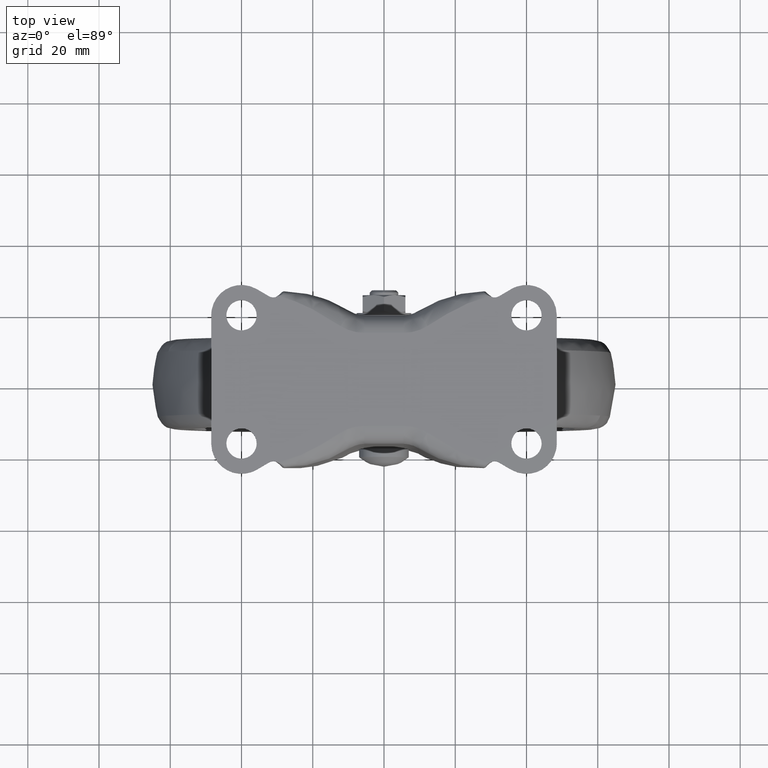
[diagram: clean part render]
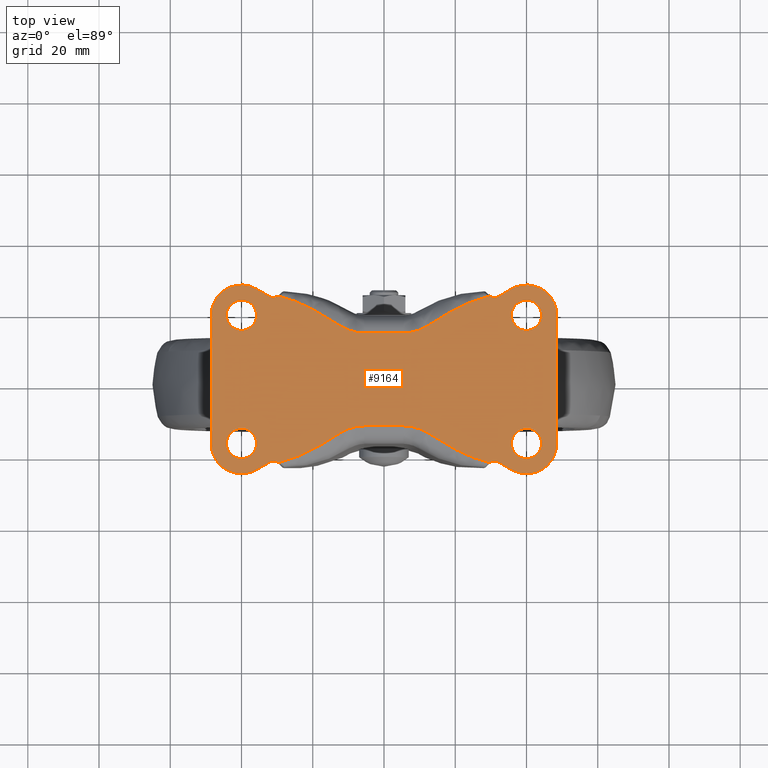
[diagram: same view with one face highlighted and labeled with its STEP entity id]
A machine part, top view. The second image highlights one B-rep face of the part: STEP entity #9164.
In plain terms, the highlighted face is a freeform B-spline surface patch.
Its self-contained STEP definition (entity closure, byte-faithful):
#4738=CARTESIAN_POINT('',(-40.501645497615932,13.779709512993010,-7.098571E-018));
#4739=VERTEX_POINT('',#4738);
#4745=CARTESIAN_POINT('',(-35.750000000000007,18.0,0.0));
#4746=VERTEX_POINT('',#4745);
#4747=CARTESIAN_POINT('',(-40.501645497615925,13.779709512993009,-7.098571E-018));
#4748=CARTESIAN_POINT('',(-40.251702508848759,13.749999999999998,0.0));
#4749=CARTESIAN_POINT('',(-40.0,13.750000000000000,0.0));
#4750=CARTESIAN_POINT('',(-35.750000000000007,13.750000000000000,0.0));
#4751=CARTESIAN_POINT('',(-35.750000000000007,18.0,0.0));
#4759=(BOUNDED_CURVE()B_SPLINE_CURVE(2,(#4747,#4748,#4749,#4750,#4751),.UNSPECIFIED.,.F.,.U.)B_SPLINE_CURVE_WITH_KNOTS((3,2,3),(0.229562473489638,0.250000000000000,0.500000000000000),.UNSPECIFIED.)CURVE()GEOMETRIC_REPRESENTATION_ITEM()RATIONAL_B_SPLINE_CURVE((0.956026754136913,0.976055948303180,1.0,0.707106781186548,1.0))REPRESENTATION_ITEM(''));
#4760=EDGE_CURVE('',#4739,#4746,#4759,.T.);
#4762=CARTESIAN_POINT('',(-39.740543706561297,22.242072893267519,-1.040834E-017));
#4763=VERTEX_POINT('',#4762);
#4764=CARTESIAN_POINT('',(-35.750000000000007,18.0,0.0));
#4765=CARTESIAN_POINT('',(-35.750000000000007,21.998000783564457,0.0));
#4766=CARTESIAN_POINT('',(-39.740543706561297,22.242072893267515,-1.040834E-017));
#4774=(BOUNDED_CURVE()B_SPLINE_CURVE(2,(#4764,#4765,#4766),.UNSPECIFIED.,.F.,.U.)B_SPLINE_CURVE_WITH_KNOTS((3,3),(0.500000000000000,0.739332962208163),.UNSPECIFIED.)CURVE()GEOMETRIC_REPRESENTATION_ITEM()RATIONAL_B_SPLINE_CURVE((1.0,0.719603993322771,0.976072041600751))REPRESENTATION_ITEM(''));
#4775=EDGE_CURVE('',#4746,#4763,#4774,.T.);
#4849=CARTESIAN_POINT('',(-44.250000000000000,18.0,0.0));
#4850=VERTEX_POINT('',#4849);
#4851=CARTESIAN_POINT('',(-39.740543706561290,22.242072893267515,-1.040834E-017));
#4852=CARTESIAN_POINT('',(-39.870150755564268,22.250000000000000,0.0));
#4853=CARTESIAN_POINT('',(-40.0,22.250000000000000,0.0));
#4854=CARTESIAN_POINT('',(-44.250000000000000,22.249999999999996,0.0));
#4855=CARTESIAN_POINT('',(-44.250000000000000,18.0,0.0));
#4863=(BOUNDED_CURVE()B_SPLINE_CURVE(2,(#4851,#4852,#4853,#4854,#4855),.UNSPECIFIED.,.F.,.U.)B_SPLINE_CURVE_WITH_KNOTS((3,2,3),(0.739332962208162,0.750000000000000,1.0),.UNSPECIFIED.)CURVE()GEOMETRIC_REPRESENTATION_ITEM()RATIONAL_B_SPLINE_CURVE((0.976072041600749,0.987502787863776,1.0,0.707106781186548,1.0))REPRESENTATION_ITEM(''));
#4864=EDGE_CURVE('',#4763,#4850,#4863,.T.);
#4866=CARTESIAN_POINT('',(-44.250000000000000,18.0,0.0));
#4867=CARTESIAN_POINT('',(-44.249999999999993,14.225258265291631,0.0));
#4868=CARTESIAN_POINT('',(-40.501645497615925,13.779709512993009,-7.098571E-018));
#4876=(BOUNDED_CURVE()B_SPLINE_CURVE(2,(#4866,#4867,#4868),.UNSPECIFIED.,.F.,.U.)B_SPLINE_CURVE_WITH_KNOTS((3,3),(0.0,0.229562473489638),.UNSPECIFIED.)CURVE()GEOMETRIC_REPRESENTATION_ITEM()RATIONAL_B_SPLINE_CURVE((1.0,0.731050832883368,0.956026754136913))REPRESENTATION_ITEM(''));
#4877=EDGE_CURVE('',#4850,#4739,#4876,.T.);
#4924=CARTESIAN_POINT('',(-40.501645497615932,-22.220290487006981,-7.098571E-018));
#4925=VERTEX_POINT('',#4924);
#4931=CARTESIAN_POINT('',(-35.750000000000007,-18.0,0.0));
#4932=VERTEX_POINT('',#4931);
#4933=CARTESIAN_POINT('',(-40.501645497615947,-22.220290487006988,-7.098571E-018));
#4934=CARTESIAN_POINT('',(-40.251702508848766,-22.250000000000000,0.0));
#4935=CARTESIAN_POINT('',(-40.0,-22.250000000000000,0.0));
#4936=CARTESIAN_POINT('',(-35.750000000000007,-22.249999999999996,0.0));
#4937=CARTESIAN_POINT('',(-35.750000000000007,-18.0,0.0));
#4945=(BOUNDED_CURVE()B_SPLINE_CURVE(2,(#4933,#4934,#4935,#4936,#4937),.UNSPECIFIED.,.F.,.U.)B_SPLINE_CURVE_WITH_KNOTS((3,2,3),(0.229562473489638,0.250000000000000,0.500000000000000),.UNSPECIFIED.)CURVE()GEOMETRIC_REPRESENTATION_ITEM()RATIONAL_B_SPLINE_CURVE((0.956026754136913,0.976055948303179,1.0,0.707106781186548,1.0))REPRESENTATION_ITEM(''));
#4946=EDGE_CURVE('',#4925,#4932,#4945,.T.);
#4948=CARTESIAN_POINT('',(-39.740543706561297,-13.757927106732479,-1.040834E-017));
#4949=VERTEX_POINT('',#4948);
#4950=CARTESIAN_POINT('',(-35.750000000000007,-18.0,0.0));
#4951=CARTESIAN_POINT('',(-35.750000000000007,-14.001999216435546,0.0));
#4952=CARTESIAN_POINT('',(-39.740543706561297,-13.757927106732479,-1.040834E-017));
#4960=(BOUNDED_CURVE()B_SPLINE_CURVE(2,(#4950,#4951,#4952),.UNSPECIFIED.,.F.,.U.)B_SPLINE_CURVE_WITH_KNOTS((3,3),(0.500000000000000,0.739332962208163),.UNSPECIFIED.)CURVE()GEOMETRIC_REPRESENTATION_ITEM()RATIONAL_B_SPLINE_CURVE((1.0,0.719603993322771,0.976072041600751))REPRESENTATION_ITEM(''));
#4961=EDGE_CURVE('',#4932,#4949,#4960,.T.);
#5035=CARTESIAN_POINT('',(-44.250000000000000,-18.0,0.0));
#5036=VERTEX_POINT('',#5035);
#5037=CARTESIAN_POINT('',(-39.740543706561290,-13.757927106732479,-1.040834E-017));
#5038=CARTESIAN_POINT('',(-39.870150755564268,-13.749999999999993,0.0));
#5039=CARTESIAN_POINT('',(-40.0,-13.750000000000000,0.0));
#5040=CARTESIAN_POINT('',(-44.250000000000000,-13.750000000000000,0.0));
#5041=CARTESIAN_POINT('',(-44.250000000000000,-18.0,0.0));
#5049=(BOUNDED_CURVE()B_SPLINE_CURVE(2,(#5037,#5038,#5039,#5040,#5041),.UNSPECIFIED.,.F.,.U.)B_SPLINE_CURVE_WITH_KNOTS((3,2,3),(0.739332962208162,0.750000000000000,1.0),.UNSPECIFIED.)CURVE()GEOMETRIC_REPRESENTATION_ITEM()RATIONAL_B_SPLINE_CURVE((0.976072041600749,0.987502787863776,1.0,0.707106781186548,1.0))REPRESENTATION_ITEM(''));
#5050=EDGE_CURVE('',#4949,#5036,#5049,.T.);
#5052=CARTESIAN_POINT('',(-44.250000000000000,-18.0,0.0));
#5053=CARTESIAN_POINT('',(-44.250000000000000,-21.774741734708364,0.0));
#5054=CARTESIAN_POINT('',(-40.501645497615932,-22.220290487006984,-7.098571E-018));
#5062=(BOUNDED_CURVE()B_SPLINE_CURVE(2,(#5052,#5053,#5054),.UNSPECIFIED.,.F.,.U.)B_SPLINE_CURVE_WITH_KNOTS((3,3),(0.0,0.229562473489638),.UNSPECIFIED.)CURVE()GEOMETRIC_REPRESENTATION_ITEM()RATIONAL_B_SPLINE_CURVE((1.0,0.731050832883368,0.956026754136913))REPRESENTATION_ITEM(''));
#5063=EDGE_CURVE('',#5036,#4925,#5062,.T.);
#5110=CARTESIAN_POINT('',(39.498354502384082,13.779709512993010,-7.098571E-018));
#5111=VERTEX_POINT('',#5110);
#5117=CARTESIAN_POINT('',(44.250000000000000,18.0,0.0));
#5118=VERTEX_POINT('',#5117);
#5119=CARTESIAN_POINT('',(39.498354502384082,13.779709512993014,-7.098571E-018));
#5120=CARTESIAN_POINT('',(39.748297491151249,13.749999999999996,0.0));
#5121=CARTESIAN_POINT('',(40.0,13.750000000000000,0.0));
#5122=CARTESIAN_POINT('',(44.250000000000000,13.750000000000000,0.0));
#5123=CARTESIAN_POINT('',(44.250000000000000,18.0,0.0));
#5131=(BOUNDED_CURVE()B_SPLINE_CURVE(2,(#5119,#5120,#5121,#5122,#5123),.UNSPECIFIED.,.F.,.U.)B_SPLINE_CURVE_WITH_KNOTS((3,2,3),(0.229562473489639,0.250000000000000,0.500000000000000),.UNSPECIFIED.)CURVE()GEOMETRIC_REPRESENTATION_ITEM()RATIONAL_B_SPLINE_CURVE((0.956026754136913,0.976055948303180,1.0,0.707106781186548,1.0))REPRESENTATION_ITEM(''));
#5132=EDGE_CURVE('',#5111,#5118,#5131,.T.);
#5134=CARTESIAN_POINT('',(40.259456293438710,22.242072893267519,-1.040834E-017));
#5135=VERTEX_POINT('',#5134);
#5136=CARTESIAN_POINT('',(44.250000000000000,18.0,0.0));
#5137=CARTESIAN_POINT('',(44.250000000000000,21.998000783564457,0.0));
#5138=CARTESIAN_POINT('',(40.259456293438710,22.242072893267515,-1.040834E-017));
#5146=(BOUNDED_CURVE()B_SPLINE_CURVE(2,(#5136,#5137,#5138),.UNSPECIFIED.,.F.,.U.)B_SPLINE_CURVE_WITH_KNOTS((3,3),(0.500000000000000,0.739332962208163),.UNSPECIFIED.)CURVE()GEOMETRIC_REPRESENTATION_ITEM()RATIONAL_B_SPLINE_CURVE((1.0,0.719603993322771,0.976072041600751))REPRESENTATION_ITEM(''));
#5147=EDGE_CURVE('',#5118,#5135,#5146,.T.);
#5221=CARTESIAN_POINT('',(35.750000000000007,18.0,0.0));
#5222=VERTEX_POINT('',#5221);
#5223=CARTESIAN_POINT('',(40.259456293438710,22.242072893267522,-1.040834E-017));
#5224=CARTESIAN_POINT('',(40.129849244435732,22.250000000000007,0.0));
#5225=CARTESIAN_POINT('',(40.0,22.250000000000000,0.0));
#5226=CARTESIAN_POINT('',(35.750000000000007,22.249999999999996,0.0));
#5227=CARTESIAN_POINT('',(35.750000000000007,18.0,0.0));
#5235=(BOUNDED_CURVE()B_SPLINE_CURVE(2,(#5223,#5224,#5225,#5226,#5227),.UNSPECIFIED.,.F.,.U.)B_SPLINE_CURVE_WITH_KNOTS((3,2,3),(0.739332962208162,0.750000000000000,1.0),.UNSPECIFIED.)CURVE()GEOMETRIC_REPRESENTATION_ITEM()RATIONAL_B_SPLINE_CURVE((0.976072041600749,0.987502787863775,1.0,0.707106781186548,1.0))REPRESENTATION_ITEM(''));
#5236=EDGE_CURVE('',#5135,#5222,#5235,.T.);
#5238=CARTESIAN_POINT('',(35.750000000000007,18.0,0.0));
#5239=CARTESIAN_POINT('',(35.750000000000000,14.225258265291618,0.0));
#5240=CARTESIAN_POINT('',(39.498354502384082,13.779709512993014,-7.098571E-018));
#5248=(BOUNDED_CURVE()B_SPLINE_CURVE(2,(#5238,#5239,#5240),.UNSPECIFIED.,.F.,.U.)B_SPLINE_CURVE_WITH_KNOTS((3,3),(0.0,0.229562473489639),.UNSPECIFIED.)CURVE()GEOMETRIC_REPRESENTATION_ITEM()RATIONAL_B_SPLINE_CURVE((1.0,0.731050832883368,0.956026754136913))REPRESENTATION_ITEM(''));
#5249=EDGE_CURVE('',#5222,#5111,#5248,.T.);
#5296=CARTESIAN_POINT('',(39.498354502384082,-22.220290487006981,-7.098571E-018));
#5297=VERTEX_POINT('',#5296);
#5303=CARTESIAN_POINT('',(44.250000000000000,-18.0,0.0));
#5304=VERTEX_POINT('',#5303);
#5305=CARTESIAN_POINT('',(39.498354502384082,-22.220290487006981,-7.098571E-018));
#5306=CARTESIAN_POINT('',(39.748297491151249,-22.250000000000000,0.0));
#5307=CARTESIAN_POINT('',(40.0,-22.250000000000000,0.0));
#5308=CARTESIAN_POINT('',(44.250000000000000,-22.249999999999996,0.0));
#5309=CARTESIAN_POINT('',(44.250000000000000,-18.0,0.0));
#5317=(BOUNDED_CURVE()B_SPLINE_CURVE(2,(#5305,#5306,#5307,#5308,#5309),.UNSPECIFIED.,.F.,.U.)B_SPLINE_CURVE_WITH_KNOTS((3,2,3),(0.229562473489638,0.250000000000000,0.500000000000000),.UNSPECIFIED.)CURVE()GEOMETRIC_REPRESENTATION_ITEM()RATIONAL_B_SPLINE_CURVE((0.956026754136913,0.976055948303180,1.0,0.707106781186548,1.0))REPRESENTATION_ITEM(''));
#5318=EDGE_CURVE('',#5297,#5304,#5317,.T.);
#5320=CARTESIAN_POINT('',(40.259456293438710,-13.757927106732479,-1.040834E-017));
#5321=VERTEX_POINT('',#5320);
#5322=CARTESIAN_POINT('',(44.250000000000000,-18.0,0.0));
#5323=CARTESIAN_POINT('',(44.250000000000000,-14.001999216435546,0.0));
#5324=CARTESIAN_POINT('',(40.259456293438710,-13.757927106732479,-1.040834E-017));
#5332=(BOUNDED_CURVE()B_SPLINE_CURVE(2,(#5322,#5323,#5324),.UNSPECIFIED.,.F.,.U.)B_SPLINE_CURVE_WITH_KNOTS((3,3),(0.500000000000000,0.739332962208163),.UNSPECIFIED.)CURVE()GEOMETRIC_REPRESENTATION_ITEM()RATIONAL_B_SPLINE_CURVE((1.0,0.719603993322771,0.976072041600751))REPRESENTATION_ITEM(''));
#5333=EDGE_CURVE('',#5304,#5321,#5332,.T.);
#5407=CARTESIAN_POINT('',(35.750000000000007,-18.0,0.0));
#5408=VERTEX_POINT('',#5407);
#5409=CARTESIAN_POINT('',(40.259456293438710,-13.757927106732478,-1.040834E-017));
#5410=CARTESIAN_POINT('',(40.129849244435732,-13.749999999999996,0.0));
#5411=CARTESIAN_POINT('',(40.0,-13.750000000000000,0.0));
#5412=CARTESIAN_POINT('',(35.750000000000007,-13.750000000000000,0.0));
#5413=CARTESIAN_POINT('',(35.750000000000007,-18.0,0.0));
#5421=(BOUNDED_CURVE()B_SPLINE_CURVE(2,(#5409,#5410,#5411,#5412,#5413),.UNSPECIFIED.,.F.,.U.)B_SPLINE_CURVE_WITH_KNOTS((3,2,3),(0.739332962208162,0.750000000000000,1.0),.UNSPECIFIED.)CURVE()GEOMETRIC_REPRESENTATION_ITEM()RATIONAL_B_SPLINE_CURVE((0.976072041600749,0.987502787863775,1.0,0.707106781186548,1.0))REPRESENTATION_ITEM(''));
#5422=EDGE_CURVE('',#5321,#5408,#5421,.T.);
#5424=CARTESIAN_POINT('',(35.750000000000007,-18.0,0.0));
#5425=CARTESIAN_POINT('',(35.750000000000000,-21.774741734708378,0.0));
#5426=CARTESIAN_POINT('',(39.498354502384082,-22.220290487006981,-7.098571E-018));
#5434=(BOUNDED_CURVE()B_SPLINE_CURVE(2,(#5424,#5425,#5426),.UNSPECIFIED.,.F.,.U.)B_SPLINE_CURVE_WITH_KNOTS((3,3),(0.0,0.229562473489638),.UNSPECIFIED.)CURVE()GEOMETRIC_REPRESENTATION_ITEM()RATIONAL_B_SPLINE_CURVE((1.0,0.731050832883368,0.956026754136913))REPRESENTATION_ITEM(''));
#5435=EDGE_CURVE('',#5408,#5297,#5434,.T.);
#5502=CARTESIAN_POINT('',(29.691194698723098,23.395897322408651,0.0));
#5503=VERTEX_POINT('',#5502);
#5634=CARTESIAN_POINT('',(-29.691194753982600,23.395897286951399,0.0));
#5635=VERTEX_POINT('',#5634);
#5837=CARTESIAN_POINT('',(29.691194479038899,-23.395897463368598,0.0));
#5838=VERTEX_POINT('',#5837);
#5998=CARTESIAN_POINT('',(-29.691194659870050,-23.395897347338551,0.0));
#5999=VERTEX_POINT('',#5998);
#7375=CARTESIAN_POINT('',(-12.193367492635820,14.980134089321320,0.0));
#7376=VERTEX_POINT('',#7375);
#7377=CARTESIAN_POINT('',(-12.193367492635820,14.980134089321320,0.0));
#7378=CARTESIAN_POINT('',(-15.166118263301600,16.856886899661749,0.0));
#7379=CARTESIAN_POINT('',(-16.097198220634350,17.423895250979349,0.0));
#7380=CARTESIAN_POINT('',(-18.349554105276901,18.795533193213849,0.0));
#7381=CARTESIAN_POINT('',(-20.226654206650750,19.778444542653101,0.0));
#7382=CARTESIAN_POINT('',(-25.088325193292700,22.324175367829749,0.0));
#7383=CARTESIAN_POINT('',(-29.691194753982600,23.395897286951399,0.0));
#7384=B_SPLINE_CURVE_WITH_KNOTS('',2,(#7377,#7378,#7379,#7380,#7381,#7382,#7383),.UNSPECIFIED.,.F.,.U.,(3,2,2,3),(0.0,0.250000000000000,0.500000000000000,1.0),.UNSPECIFIED.);
#7385=EDGE_CURVE('',#7376,#5635,#7384,.T.);
#7420=CARTESIAN_POINT('',(-5.520441999999920,13.050000000000120,0.0));
#7421=VERTEX_POINT('',#7420);
#7451=CARTESIAN_POINT('',(-5.520441999999920,13.050000000000120,0.0));
#7452=CARTESIAN_POINT('',(-9.136048999229999,13.049999999999995,0.0));
#7453=CARTESIAN_POINT('',(-12.193367492635820,14.980134089321320,0.0));
#7461=(BOUNDED_CURVE()B_SPLINE_CURVE(2,(#7451,#7452,#7453),.UNSPECIFIED.,.F.,.U.)CURVE()GEOMETRIC_REPRESENTATION_ITEM()QUASI_UNIFORM_CURVE()RATIONAL_B_SPLINE_CURVE((1.0,0.960622004967173,1.0))REPRESENTATION_ITEM(''));
#7462=EDGE_CURVE('',#7421,#7376,#7461,.T.);
#7481=CARTESIAN_POINT('',(5.520442000000000,13.050000000000120,0.0));
#7482=VERTEX_POINT('',#7481);
#7504=CARTESIAN_POINT('',(5.520442000000000,13.050000000000120,0.0));
#7505=CARTESIAN_POINT('',(-5.520441999999920,13.050000000000120,0.0));
#7506=QUASI_UNIFORM_CURVE('',1,(#7504,#7505),.UNSPECIFIED.,.F.,.U.);
#7507=EDGE_CURVE('',#7482,#7421,#7506,.T.);
#7529=CARTESIAN_POINT('',(12.193367168052660,14.980133884406721,0.0));
#7530=VERTEX_POINT('',#7529);
#7560=CARTESIAN_POINT('',(12.193367168052660,14.980133884406721,0.0));
#7561=CARTESIAN_POINT('',(9.136048791245285,13.050000000000004,0.0));
#7562=CARTESIAN_POINT('',(5.520442000000000,13.050000000000120,0.0));
#7570=(BOUNDED_CURVE()B_SPLINE_CURVE(2,(#7560,#7561,#7562),.UNSPECIFIED.,.F.,.U.)CURVE()GEOMETRIC_REPRESENTATION_ITEM()QUASI_UNIFORM_CURVE()RATIONAL_B_SPLINE_CURVE((1.0,0.960622009233463,1.0))REPRESENTATION_ITEM(''));
#7571=EDGE_CURVE('',#7530,#7482,#7570,.T.);
#7614=CARTESIAN_POINT('',(29.691194698723098,23.395897322408651,0.0));
#7615=CARTESIAN_POINT('',(25.089010001830200,22.324335008529250,0.0));
#7616=CARTESIAN_POINT('',(20.226653853224651,19.778444745256401,0.0));
#7617=CARTESIAN_POINT('',(18.351012947557798,18.796374371718901,0.0));
#7618=CARTESIAN_POINT('',(16.097197732793848,17.423895484744250,0.0));
#7619=CARTESIAN_POINT('',(15.166998866521300,16.857443409931850,0.0));
#7620=CARTESIAN_POINT('',(12.193367168052660,14.980133884406721,0.0));
#7621=B_SPLINE_CURVE_WITH_KNOTS('',2,(#7614,#7615,#7616,#7617,#7618,#7619,#7620),.UNSPECIFIED.,.F.,.U.,(3,2,2,3),(0.0,0.500000000000000,0.750000000000000,1.0),.UNSPECIFIED.);
#7622=EDGE_CURVE('',#5503,#7530,#7621,.T.);
#7724=CARTESIAN_POINT('',(12.193367392894221,-14.980134026352800,0.0));
#7725=VERTEX_POINT('',#7724);
#7726=CARTESIAN_POINT('',(12.193367392894221,-14.980134026352800,0.0));
#7727=CARTESIAN_POINT('',(15.166118686165150,-16.856887699902749,0.0));
#7728=CARTESIAN_POINT('',(16.097197864685700,-17.423895559851399,0.0));
#7729=CARTESIAN_POINT('',(18.349553809182250,-18.795533497197152,0.0));
#7730=CARTESIAN_POINT('',(20.226653872326949,-19.778444805033399,0.0));
#7731=CARTESIAN_POINT('',(25.088324887928952,-22.324175589469750,0.0));
#7732=CARTESIAN_POINT('',(29.691194479038899,-23.395897463368598,0.0));
#7733=B_SPLINE_CURVE_WITH_KNOTS('',2,(#7726,#7727,#7728,#7729,#7730,#7731,#7732),.UNSPECIFIED.,.F.,.U.,(3,2,2,3),(0.0,0.250000000000000,0.500000000000000,1.0),.UNSPECIFIED.);
#7734=EDGE_CURVE('',#7725,#5838,#7733,.T.);
#7769=CARTESIAN_POINT('',(5.520442000000000,-13.050000000000120,0.0));
#7770=VERTEX_POINT('',#7769);
#7800=CARTESIAN_POINT('',(5.520442000000000,-13.050000000000120,0.0));
#7801=CARTESIAN_POINT('',(9.136048935318112,-13.049999999999994,0.0));
#7802=CARTESIAN_POINT('',(12.193367392894221,-14.980134026352800,0.0));
#7810=(BOUNDED_CURVE()B_SPLINE_CURVE(2,(#7800,#7801,#7802),.UNSPECIFIED.,.F.,.U.)CURVE()GEOMETRIC_REPRESENTATION_ITEM()QUASI_UNIFORM_CURVE()RATIONAL_B_SPLINE_CURVE((1.0,0.960622006278168,1.0))REPRESENTATION_ITEM(''));
#7811=EDGE_CURVE('',#7770,#7725,#7810,.T.);
#7830=CARTESIAN_POINT('',(-5.520441999999920,-13.050000000000120,0.0));
#7831=VERTEX_POINT('',#7830);
#7853=CARTESIAN_POINT('',(-5.520441999999920,-13.050000000000120,0.0));
#7854=CARTESIAN_POINT('',(5.520442000000000,-13.050000000000120,0.0));
#7855=QUASI_UNIFORM_CURVE('',1,(#7853,#7854),.UNSPECIFIED.,.F.,.U.);
#7856=EDGE_CURVE('',#7831,#7770,#7855,.T.);
#7878=CARTESIAN_POINT('',(-12.193367883073620,-14.980134335810961,0.0));
#7879=VERTEX_POINT('',#7878);
#7909=CARTESIAN_POINT('',(-12.193367883073620,-14.980134335810961,0.0));
#7910=CARTESIAN_POINT('',(-9.136049249412734,-13.049999999999995,0.0));
#7911=CARTESIAN_POINT('',(-5.520441999999920,-13.050000000000120,0.0));
#7919=(BOUNDED_CURVE()B_SPLINE_CURVE(2,(#7909,#7910,#7911),.UNSPECIFIED.,.F.,.U.)CURVE()GEOMETRIC_REPRESENTATION_ITEM()QUASI_UNIFORM_CURVE()RATIONAL_B_SPLINE_CURVE((1.0,0.960621999835297,1.0))REPRESENTATION_ITEM(''));
#7920=EDGE_CURVE('',#7879,#7831,#7919,.T.);
#7963=CARTESIAN_POINT('',(-29.691194659870050,-23.395897347338551,0.0));
#7964=CARTESIAN_POINT('',(-25.089010284335750,-22.324334903355851,0.0));
#7965=CARTESIAN_POINT('',(-20.226654388887500,-19.778444615752498,0.0));
#7966=CARTESIAN_POINT('',(-18.351013656586449,-18.796374272471251,0.0));
#7967=CARTESIAN_POINT('',(-16.097198518367001,-17.423895389323452,0.0));
#7968=CARTESIAN_POINT('',(-15.167000650450349,-16.857443904809401,0.0));
#7969=CARTESIAN_POINT('',(-12.193367883073620,-14.980134335810961,0.0));
#7970=B_SPLINE_CURVE_WITH_KNOTS('',2,(#7963,#7964,#7965,#7966,#7967,#7968,#7969),.UNSPECIFIED.,.F.,.U.,(3,2,2,3),(0.0,0.500000000000000,0.750000000000000,1.0),.UNSPECIFIED.);
#7971=EDGE_CURVE('',#5999,#7879,#7970,.T.);
#8957=CARTESIAN_POINT('',(-53.345149811995192,29.143084964572669,0.0));
#8958=CARTESIAN_POINT('',(53.345152413737928,29.143084964572669,0.0));
#8959=CARTESIAN_POINT('',(-53.345149811995192,-29.143086452809921,0.0));
#8960=CARTESIAN_POINT('',(53.345152413737928,-29.143086452809921,0.0));
#8961=B_SPLINE_SURFACE_WITH_KNOTS('',1,1,((#8957,#8959),(#8958,#8960)),.UNSPECIFIED.,.F.,.F.,.U.,(2,2),(2,2),(0.0,106.690302225733110),(0.0,58.286171417382590),.UNSPECIFIED.);
#8962=ORIENTED_EDGE('',*,*,#7462,.T.);
#8963=ORIENTED_EDGE('',*,*,#7385,.T.);
#8964=CARTESIAN_POINT('',(-32.305131926477451,23.342988518921199,0.0));
#8965=VERTEX_POINT('',#8964);
#8966=CARTESIAN_POINT('',(-32.305131926477458,23.342988518921189,0.0));
#8967=CARTESIAN_POINT('',(-30.981935167362039,22.567696313843811,0.0));
#8968=CARTESIAN_POINT('',(-29.691194753982600,23.395897286951399,0.0));
#8976=(BOUNDED_CURVE()B_SPLINE_CURVE(2,(#8966,#8967,#8968),.UNSPECIFIED.,.F.,.U.)CURVE()GEOMETRIC_REPRESENTATION_ITEM()QUASI_UNIFORM_CURVE()RATIONAL_B_SPLINE_CURVE((1.0,0.852397398412621,1.0))REPRESENTATION_ITEM(''));
#8977=EDGE_CURVE('',#8965,#5635,#8976,.T.);
#8978=ORIENTED_EDGE('',*,*,#8977,.F.);
#8979=CARTESIAN_POINT('',(-35.702930649976352,25.333839035668099,0.0));
#8980=VERTEX_POINT('',#8979);
#8981=CARTESIAN_POINT('',(-32.305131926477451,23.342988518921199,0.0));
#8982=CARTESIAN_POINT('',(-35.702930649976352,25.333839035668099,0.0));
#8983=QUASI_UNIFORM_CURVE('',1,(#8981,#8982),.UNSPECIFIED.,.F.,.U.);
#8984=EDGE_CURVE('',#8965,#8980,#8983,.T.);
#8985=ORIENTED_EDGE('',*,*,#8984,.T.);
#8986=CARTESIAN_POINT('',(-48.500000000000000,18.0,0.0));
#8987=VERTEX_POINT('',#8986);
#8988=CARTESIAN_POINT('',(-35.702930649976409,25.333839035667999,0.0));
#8989=CARTESIAN_POINT('',(-39.952799598334209,27.823937538074244,0.0));
#8990=CARTESIAN_POINT('',(-44.226399799167098,25.374791165694141,0.0));
#8991=CARTESIAN_POINT('',(-48.500000000000000,22.925644793314024,0.0));
#8992=CARTESIAN_POINT('',(-48.500000000000000,18.0,0.0));
#9000=(BOUNDED_CURVE()B_SPLINE_CURVE(2,(#8988,#8989,#8990,#8991,#8992),.UNSPECIFIED.,.F.,.U.)B_SPLINE_CURVE_WITH_KNOTS((3,2,3),(0.0,0.500000000000000,1.0),.UNSPECIFIED.)CURVE()GEOMETRIC_REPRESENTATION_ITEM()RATIONAL_B_SPLINE_CURVE((1.0,0.865223527703785,1.0,0.865223527703785,1.0))REPRESENTATION_ITEM(''));
#9001=EDGE_CURVE('',#8980,#8987,#9000,.T.);
#9002=ORIENTED_EDGE('',*,*,#9001,.T.);
#9003=CARTESIAN_POINT('',(-48.500000000000000,-18.0,0.0));
#9004=VERTEX_POINT('',#9003);
#9005=CARTESIAN_POINT('',(-48.500000000000000,18.0,0.0));
#9006=CARTESIAN_POINT('',(-48.500000000000000,-18.0,0.0));
#9007=QUASI_UNIFORM_CURVE('',1,(#9005,#9006),.UNSPECIFIED.,.F.,.U.);
#9008=EDGE_CURVE('',#8987,#9004,#9007,.T.);
#9009=ORIENTED_EDGE('',*,*,#9008,.T.);
#9010=CARTESIAN_POINT('',(-35.702930649976352,-25.333839035668099,0.0));
#9011=VERTEX_POINT('',#9010);
#9012=CARTESIAN_POINT('',(-48.500000000000000,-18.0,0.0));
#9013=CARTESIAN_POINT('',(-48.500000000000000,-22.925644793314028,0.0));
#9014=CARTESIAN_POINT('',(-44.226399799167112,-25.374791165694141,0.0));
#9015=CARTESIAN_POINT('',(-39.952799598334195,-27.823937538074247,0.0));
#9016=CARTESIAN_POINT('',(-35.702930649976409,-25.333839035667999,0.0));
#9024=(BOUNDED_CURVE()B_SPLINE_CURVE(2,(#9012,#9013,#9014,#9015,#9016),.UNSPECIFIED.,.F.,.U.)B_SPLINE_CURVE_WITH_KNOTS((3,2,3),(0.0,0.500000000000000,1.0),.UNSPECIFIED.)CURVE()GEOMETRIC_REPRESENTATION_ITEM()RATIONAL_B_SPLINE_CURVE((1.0,0.865223527703785,1.0,0.865223527703785,1.0))REPRESENTATION_ITEM(''));
#9025=EDGE_CURVE('',#9004,#9011,#9024,.T.);
#9026=ORIENTED_EDGE('',*,*,#9025,.T.);
#9027=CARTESIAN_POINT('',(-32.305131999999887,-23.342988000000052,0.0));
#9028=VERTEX_POINT('',#9027);
#9029=CARTESIAN_POINT('',(-35.702930649976352,-25.333839035668099,0.0));
#9030=CARTESIAN_POINT('',(-32.305131999999887,-23.342988000000052,0.0));
#9031=QUASI_UNIFORM_CURVE('',1,(#9029,#9030),.UNSPECIFIED.,.F.,.U.);
#9032=EDGE_CURVE('',#9011,#9028,#9031,.T.);
#9033=ORIENTED_EDGE('',*,*,#9032,.T.);
#9034=CARTESIAN_POINT('',(-29.691194659870050,-23.395897347338540,0.0));
#9035=CARTESIAN_POINT('',(-30.981934985771705,-22.567696348859375,0.0));
#9036=CARTESIAN_POINT('',(-32.305131999999887,-23.342988000000052,0.0));
#9044=(BOUNDED_CURVE()B_SPLINE_CURVE(2,(#9034,#9035,#9036),.UNSPECIFIED.,.F.,.U.)CURVE()GEOMETRIC_REPRESENTATION_ITEM()QUASI_UNIFORM_CURVE()RATIONAL_B_SPLINE_CURVE((1.0,0.852397407519174,1.0))REPRESENTATION_ITEM(''));
#9045=EDGE_CURVE('',#5999,#9028,#9044,.T.);
#9046=ORIENTED_EDGE('',*,*,#9045,.F.);
#9047=ORIENTED_EDGE('',*,*,#7971,.T.);
#9048=ORIENTED_EDGE('',*,*,#7920,.T.);
#9049=ORIENTED_EDGE('',*,*,#7856,.T.);
#9050=ORIENTED_EDGE('',*,*,#7811,.T.);
#9051=ORIENTED_EDGE('',*,*,#7734,.T.);
#9052=CARTESIAN_POINT('',(32.305131926477650,-23.342988518921199,0.0));
#9053=VERTEX_POINT('',#9052);
#9054=CARTESIAN_POINT('',(32.305131926477657,-23.342988518921189,0.0));
#9055=CARTESIAN_POINT('',(30.981934973400801,-22.567696200197233,0.0));
#9056=CARTESIAN_POINT('',(29.691194479038909,-23.395897463368620,0.0));
#9064=(BOUNDED_CURVE()B_SPLINE_CURVE(2,(#9054,#9055,#9056),.UNSPECIFIED.,.F.,.U.)CURVE()GEOMETRIC_REPRESENTATION_ITEM()QUASI_UNIFORM_CURVE()RATIONAL_B_SPLINE_CURVE((1.0,0.852397364249207,1.0))REPRESENTATION_ITEM(''));
#9065=EDGE_CURVE('',#9053,#5838,#9064,.T.);
#9066=ORIENTED_EDGE('',*,*,#9065,.F.);
#9067=CARTESIAN_POINT('',(35.702930000000002,-25.333839000000101,0.0));
#9068=VERTEX_POINT('',#9067);
#9069=CARTESIAN_POINT('',(32.305131926477650,-23.342988518921199,0.0));
#9070=CARTESIAN_POINT('',(35.702930000000002,-25.333839000000101,0.0));
#9071=QUASI_UNIFORM_CURVE('',1,(#9069,#9070),.UNSPECIFIED.,.F.,.U.);
#9072=EDGE_CURVE('',#9053,#9068,#9071,.T.);
#9073=ORIENTED_EDGE('',*,*,#9072,.T.);
#9074=CARTESIAN_POINT('',(48.500000000000000,-18.0,0.0));
#9075=VERTEX_POINT('',#9074);
#9076=CARTESIAN_POINT('',(35.702930000000002,-25.333839000000101,0.0));
#9077=CARTESIAN_POINT('',(39.952799096124750,-27.823937632581647,0.0));
#9078=CARTESIAN_POINT('',(44.226399548062382,-25.374791309599090,0.0));
#9079=CARTESIAN_POINT('',(48.499999999999993,-22.925644986616526,0.0));
#9080=CARTESIAN_POINT('',(48.500000000000000,-18.0,0.0));
#9088=(BOUNDED_CURVE()B_SPLINE_CURVE(2,(#9076,#9077,#9078,#9079,#9080),.UNSPECIFIED.,.F.,.U.)B_SPLINE_CURVE_WITH_KNOTS((3,2,3),(0.0,0.500000000000000,1.0),.UNSPECIFIED.)CURVE()GEOMETRIC_REPRESENTATION_ITEM()RATIONAL_B_SPLINE_CURVE((1.0,0.865223519167918,1.0,0.865223519167918,1.0))REPRESENTATION_ITEM(''));
#9089=EDGE_CURVE('',#9068,#9075,#9088,.T.);
#9090=ORIENTED_EDGE('',*,*,#9089,.T.);
#9091=CARTESIAN_POINT('',(48.500000000000000,18.0,0.0));
#9092=VERTEX_POINT('',#9091);
#9093=CARTESIAN_POINT('',(48.500000000000000,-18.0,0.0));
#9094=CARTESIAN_POINT('',(48.500000000000000,18.0,0.0));
#9095=QUASI_UNIFORM_CURVE('',1,(#9093,#9094),.UNSPECIFIED.,.F.,.U.);
#9096=EDGE_CURVE('',#9075,#9092,#9095,.T.);
#9097=ORIENTED_EDGE('',*,*,#9096,.T.);
#9098=CARTESIAN_POINT('',(35.702930649976402,25.333839035668099,0.0));
#9099=VERTEX_POINT('',#9098);
#9100=CARTESIAN_POINT('',(48.500000000000000,18.0,0.0));
#9101=CARTESIAN_POINT('',(48.500000000000000,22.925644793314014,0.0));
#9102=CARTESIAN_POINT('',(44.226399799167119,25.374791165694131,0.0));
#9103=CARTESIAN_POINT('',(39.952799598334252,27.823937538074240,0.0));
#9104=CARTESIAN_POINT('',(35.702930649976402,25.333839035668099,0.0));
#9112=(BOUNDED_CURVE()B_SPLINE_CURVE(2,(#9100,#9101,#9102,#9103,#9104),.UNSPECIFIED.,.F.,.U.)B_SPLINE_CURVE_WITH_KNOTS((3,2,3),(0.0,0.500000000000000,1.0),.UNSPECIFIED.)CURVE()GEOMETRIC_REPRESENTATION_ITEM()RATIONAL_B_SPLINE_CURVE((1.0,0.865223527703786,1.0,0.865223527703786,1.0))REPRESENTATION_ITEM(''));
#9113=EDGE_CURVE('',#9092,#9099,#9112,.T.);
#9114=ORIENTED_EDGE('',*,*,#9113,.T.);
#9115=CARTESIAN_POINT('',(32.305131000000102,23.342988000000052,0.0));
#9116=VERTEX_POINT('',#9115);
#9117=CARTESIAN_POINT('',(35.702930649976402,25.333839035668099,0.0));
#9118=CARTESIAN_POINT('',(32.305131000000102,23.342988000000052,0.0));
#9119=QUASI_UNIFORM_CURVE('',1,(#9117,#9118),.UNSPECIFIED.,.F.,.U.);
#9120=EDGE_CURVE('',#9099,#9116,#9119,.T.);
#9121=ORIENTED_EDGE('',*,*,#9120,.T.);
#9122=CARTESIAN_POINT('',(29.691194698723109,23.395897322408668,0.0));
#9123=CARTESIAN_POINT('',(30.981934513462850,22.567696685562147,0.0));
#9124=CARTESIAN_POINT('',(32.305131000000102,23.342988000000052,0.0));
#9132=(BOUNDED_CURVE()B_SPLINE_CURVE(2,(#9122,#9123,#9124),.UNSPECIFIED.,.F.,.U.)CURVE()GEOMETRIC_REPRESENTATION_ITEM()QUASI_UNIFORM_CURVE()RATIONAL_B_SPLINE_CURVE((1.0,0.852397502578019,1.0))REPRESENTATION_ITEM(''));
#9133=EDGE_CURVE('',#5503,#9116,#9132,.T.);
#9134=ORIENTED_EDGE('',*,*,#9133,.F.);
#9135=ORIENTED_EDGE('',*,*,#7622,.T.);
#9136=ORIENTED_EDGE('',*,*,#7571,.T.);
#9137=ORIENTED_EDGE('',*,*,#7507,.T.);
#9138=EDGE_LOOP('',(#8962,#8963,#8978,#8985,#9002,#9009,#9026,#9033,#9046,#9047,#9048,#9049,#9050,#9051,#9066,#9073,#9090,#9097,#9114,#9121,#9134,#9135,#9136,#9137));
#9139=FACE_OUTER_BOUND('',#9138,.T.);
#9140=ORIENTED_EDGE('',*,*,#5333,.F.);
#9141=ORIENTED_EDGE('',*,*,#5318,.F.);
#9142=ORIENTED_EDGE('',*,*,#5435,.F.);
#9143=ORIENTED_EDGE('',*,*,#5422,.F.);
#9144=EDGE_LOOP('',(#9140,#9141,#9142,#9143));
#9145=FACE_BOUND('',#9144,.T.);
#9146=ORIENTED_EDGE('',*,*,#5147,.F.);
#9147=ORIENTED_EDGE('',*,*,#5132,.F.);
#9148=ORIENTED_EDGE('',*,*,#5249,.F.);
#9149=ORIENTED_EDGE('',*,*,#5236,.F.);
#9150=EDGE_LOOP('',(#9146,#9147,#9148,#9149));
#9151=FACE_BOUND('',#9150,.T.);
#9152=ORIENTED_EDGE('',*,*,#4961,.F.);
#9153=ORIENTED_EDGE('',*,*,#4946,.F.);
#9154=ORIENTED_EDGE('',*,*,#5063,.F.);
#9155=ORIENTED_EDGE('',*,*,#5050,.F.);
#9156=EDGE_LOOP('',(#9152,#9153,#9154,#9155));
#9157=FACE_BOUND('',#9156,.T.);
#9158=ORIENTED_EDGE('',*,*,#4775,.F.);
#9159=ORIENTED_EDGE('',*,*,#4760,.F.);
#9160=ORIENTED_EDGE('',*,*,#4877,.F.);
#9161=ORIENTED_EDGE('',*,*,#4864,.F.);
#9162=EDGE_LOOP('',(#9158,#9159,#9160,#9161));
#9163=FACE_BOUND('',#9162,.T.);
#9164=ADVANCED_FACE('',(#9139,#9145,#9151,#9157,#9163),#8961,.F.);